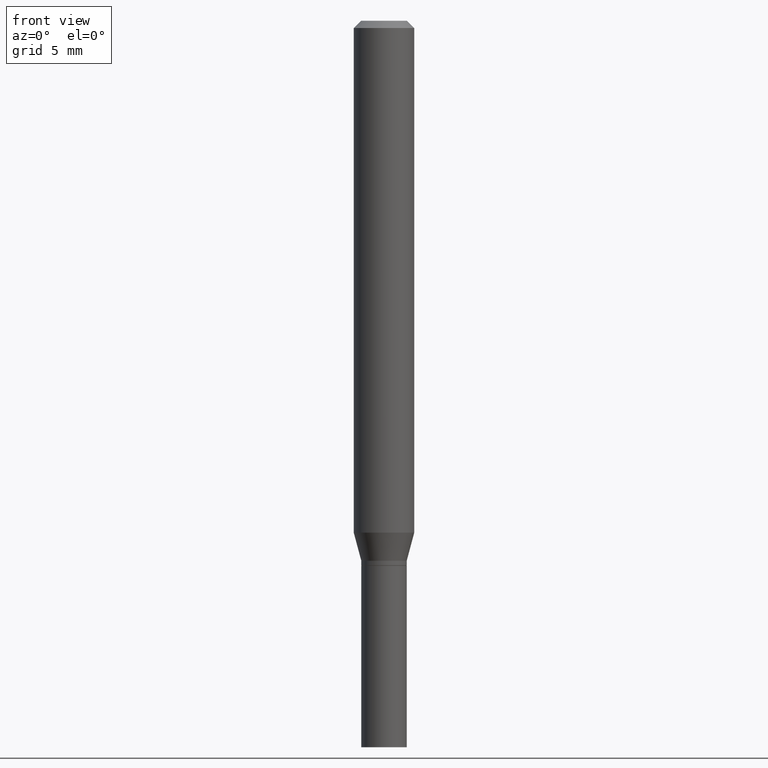
[diagram: clean part render]
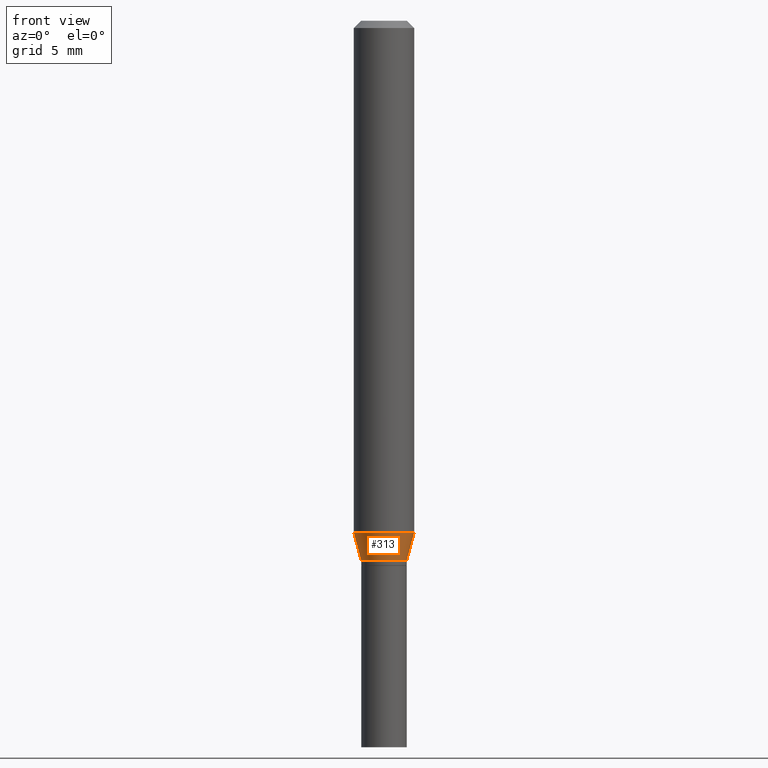
[diagram: same view with one face highlighted and labeled with its STEP entity id]
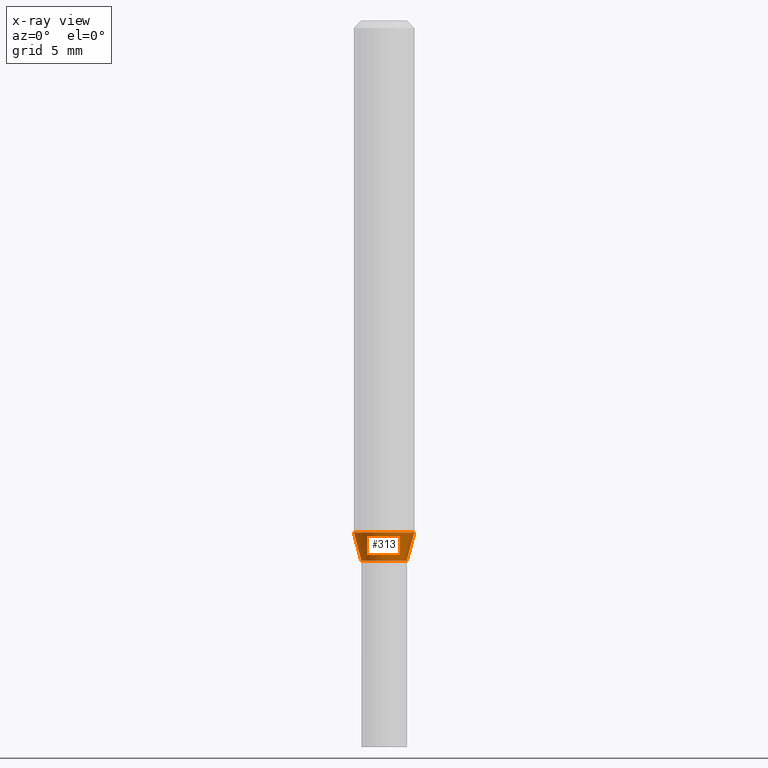
[diagram: x-ray of the same camera — body ghosted, the highlighted face saturated]
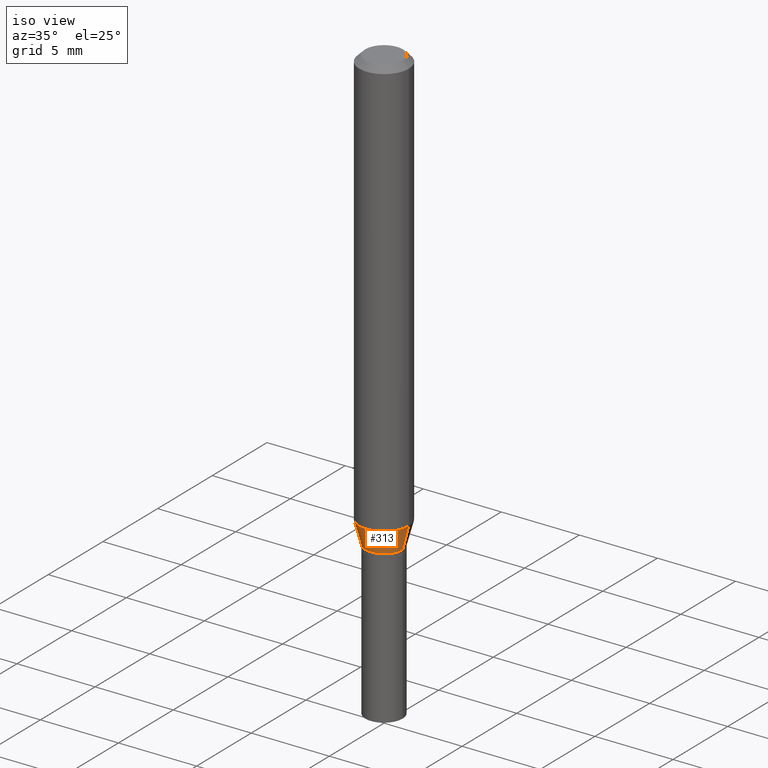
[diagram: same view with one face highlighted and labeled with its STEP entity id]
A machine part, front view. The second image highlights one B-rep face of the part: STEP entity #313.
The next image is the same camera in x-ray: the body ghosted, the highlighted face saturated — about 0% of this face is hidden behind the body in this view.
A second angle (iso view) of the same face is appended — the face is thin or edge-on in the first view.
In plain terms, the highlighted conical surface has half-angle 15 deg.
Its self-contained STEP definition (entity closure, byte-faithful):
#31 = CARTESIAN_POINT ( 'NONE',  ( 0.04690000000000019154, -4.220502642393595055E-15, -1.115000000000000213 ) ) ;
#35 = VERTEX_POINT ( 'NONE', #253 ) ;
#36 = ORIENTED_EDGE ( 'NONE', *, *, #397, .F. ) ;
#41 = VERTEX_POINT ( 'NONE', #31 ) ;
#49 = DIRECTION ( 'NONE',  ( 0.2588190451025217942, 1.565188264969618812E-15, 0.9659258262890679791 ) ) ;
#88 = CIRCLE ( 'NONE', #437, 0.06249999999999999306 ) ;
#96 = DIRECTION ( 'NONE',  ( -0.2588190451025217942, 5.211531920934552619E-15, 0.9659258262890679791 ) ) ;
#102 = DIRECTION ( 'NONE',  ( 1.000000000000000000, -6.982962677686269866E-15, 0.000000000000000000 ) ) ;
#109 = VECTOR ( 'NONE', #96, 39.37007874015748143 ) ;
#112 = EDGE_CURVE ( 'NONE', #35, #425, #88, .T. ) ;
#122 = CIRCLE ( 'NONE', #349, 0.04690000000000019154 ) ;
#130 = EDGE_LOOP ( 'NONE', ( #36, #440, #322, #195 ) ) ;
#154 = DIRECTION ( 'NONE',  ( -2.445468806185136597E-29, 3.491481338843145583E-15, 1.000000000000000000 ) ) ;
#170 = AXIS2_PLACEMENT_3D ( 'NONE', #347, #276, #102 ) ;
#195 = ORIENTED_EDGE ( 'NONE', *, *, #112, .F. ) ;
#220 = CARTESIAN_POINT ( 'NONE',  ( 2.584322543101508946E-29, -3.689727675106347649E-15, -1.056780007401926680 ) ) ;
#247 = DIRECTION ( 'NONE',  ( -2.445468806185136597E-29, 3.491481338843145583E-15, 1.000000000000000000 ) ) ;
#253 = CARTESIAN_POINT ( 'NONE',  ( -0.06249999999999999306, -3.245638465256285822E-15, -1.056780007401926680 ) ) ;
#256 = LINE ( 'NONE', #358, #357 ) ;
#276 = DIRECTION ( 'NONE',  ( -2.445468806185136597E-29, 3.491481338843145583E-15, 1.000000000000000000 ) ) ;
#280 = FACE_OUTER_BOUND ( 'NONE', #130, .T. ) ;
#292 = DIRECTION ( 'NONE',  ( 1.000000000000000000, -6.982962677686269866E-15, 0.000000000000000000 ) ) ;
#313 = ADVANCED_FACE ( 'NONE', ( #280 ), #427, .T. ) ;
#322 = ORIENTED_EDGE ( 'NONE', *, *, #446, .T. ) ;
#324 = CARTESIAN_POINT ( 'NONE',  ( 2.726697718896427687E-29, -3.893001692810107575E-15, -1.115000000000000213 ) ) ;
#334 = VERTEX_POINT ( 'NONE', #416 ) ;
#347 = CARTESIAN_POINT ( 'NONE',  ( 2.726697718896427687E-29, -3.893001692810107575E-15, -1.115000000000000213 ) ) ;
#349 = AXIS2_PLACEMENT_3D ( 'NONE', #324, #247, #292 ) ;
#351 = LINE ( 'NONE', #375, #109 ) ;
#357 = VECTOR ( 'NONE', #49, 39.37007874015748143 ) ;
#358 = CARTESIAN_POINT ( 'NONE',  ( 0.04690000000000019154, -4.220502642393595055E-15, -1.115000000000000213 ) ) ;
#369 = DIRECTION ( 'NONE',  ( 1.000000000000000000, -6.982962677686263555E-15, 0.000000000000000000 ) ) ;
#375 = CARTESIAN_POINT ( 'NONE',  ( -0.04690000000000019154, -3.559757149738619424E-15, -1.115000000000000213 ) ) ;
#397 = EDGE_CURVE ( 'NONE', #334, #35, #351, .T. ) ;
#416 = CARTESIAN_POINT ( 'NONE',  ( -0.04690000000000019154, -3.402697807497452228E-15, -1.115000000000000213 ) ) ;
#418 = CARTESIAN_POINT ( 'NONE',  ( 0.06249999999999999306, -4.126162842461740107E-15, -1.056780007401926680 ) ) ;
#425 = VERTEX_POINT ( 'NONE', #418 ) ;
#427 = CONICAL_SURFACE ( 'NONE', #170, 0.04690000000000019154, 0.2617993877991505181 ) ;
#437 = AXIS2_PLACEMENT_3D ( 'NONE', #220, #154, #369 ) ;
#440 = ORIENTED_EDGE ( 'NONE', *, *, #461, .T. ) ;
#446 = EDGE_CURVE ( 'NONE', #41, #425, #256, .T. ) ;
#461 = EDGE_CURVE ( 'NONE', #334, #41, #122, .T. ) ;